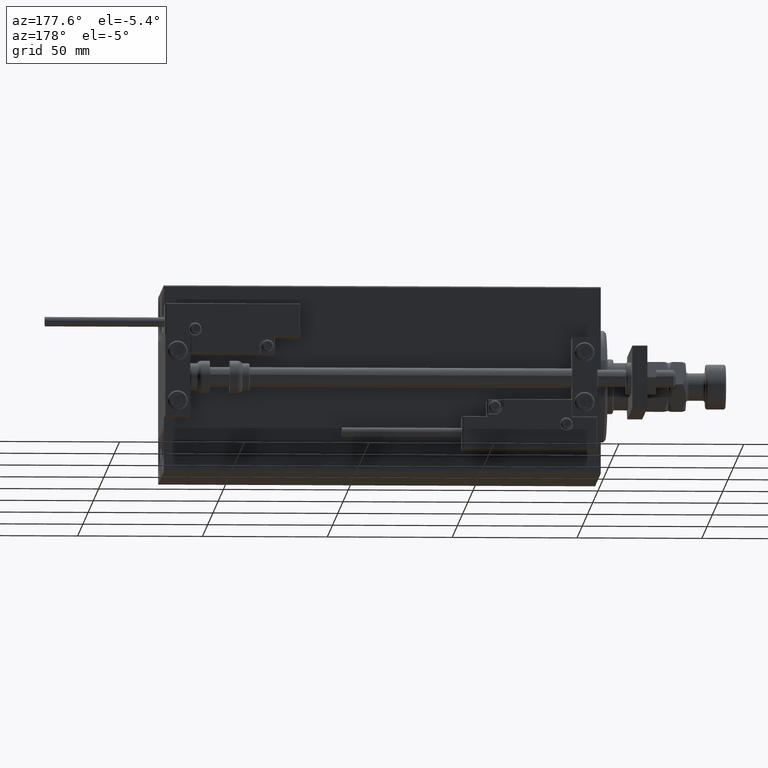
[diagram: clean part render]
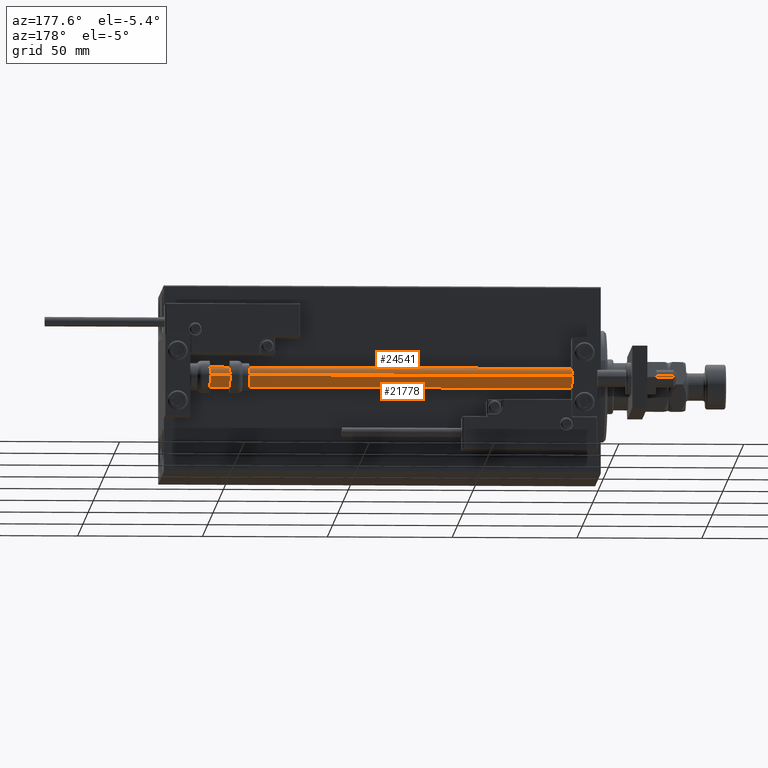
[diagram: same view with one multi-face feature highlighted, each face labeled with its STEP entity id]
A machine part, auxiliary view. The highlighted faces form ONE feature: a constant-radius fillet chain: 2 tangent blend faces with common blend radius 4 mm. The faces share edges in the B-rep.
Their STEP definitions:
[1] entity #24541 (Cylinder):
#3622 = LINE ( 'NONE', #7271, #40185 ) ;
#5370 = VERTEX_POINT ( 'NONE', #14824 ) ;
#5462 = DIRECTION ( 'NONE',  ( -0.000000000000000000, -0.000000000000000000, -1.000000000000000000 ) ) ;
#6904 = CIRCLE ( 'NONE', #29412, 4.000000000000000000 ) ;
#7185 = DIRECTION ( 'NONE',  ( -1.000000000000000000, 0.000000000000000000, 0.000000000000000000 ) ) ;
#7271 = CARTESIAN_POINT ( 'NONE',  ( -4.000000000000000000, 0.000000000000000000, 175.0000000000000000 ) ) ;
#7430 = FACE_OUTER_BOUND ( 'NONE', #13007, .T. ) ;
#8413 = DIRECTION ( 'NONE',  ( 1.000000000000000000, 0.000000000000000000, 0.000000000000000000 ) ) ;
#10900 = VERTEX_POINT ( 'NONE', #32636 ) ;
#11240 = VERTEX_POINT ( 'NONE', #17979 ) ;
#13007 = EDGE_LOOP ( 'NONE', ( #36278, #19507, #47527, #27399 ) ) ;
#14824 = CARTESIAN_POINT ( 'NONE',  ( -4.000000000000000000, 0.000000000000000000, 2.000000000000029310 ) ) ;
#17979 = CARTESIAN_POINT ( 'NONE',  ( 4.000000000000000000, 4.898587196589412829E-16, 175.0000000000000000 ) ) ;
#19507 = ORIENTED_EDGE ( 'NONE', *, *, #47655, .T. ) ;
#20838 = CARTESIAN_POINT ( 'NONE',  ( 4.000000000000000000, 4.898587196589412829E-16, 175.0000000000000000 ) ) ;
#21802 = CARTESIAN_POINT ( 'NONE',  ( -4.000000000000000000, 0.000000000000000000, 175.0000000000000000 ) ) ;
#24541 = ADVANCED_FACE ( 'NONE', ( #7430 ), #35340, .T. ) ;
#27399 = ORIENTED_EDGE ( 'NONE', *, *, #45851, .F. ) ;
#29412 = AXIS2_PLACEMENT_3D ( 'NONE', #43157, #30623, #47319 ) ;
#29718 = EDGE_CURVE ( 'NONE', #11240, #32071, #6904, .T. ) ;
#30623 = DIRECTION ( 'NONE',  ( 0.000000000000000000, 0.000000000000000000, 1.000000000000000000 ) ) ;
#31379 = CARTESIAN_POINT ( 'NONE',  ( 0.000000000000000000, 0.000000000000000000, 2.000000000000029310 ) ) ;
#32036 = DIRECTION ( 'NONE',  ( -0.000000000000000000, -0.000000000000000000, -1.000000000000000000 ) ) ;
#32071 = VERTEX_POINT ( 'NONE', #21802 ) ;
#32636 = CARTESIAN_POINT ( 'NONE',  ( 4.000000000000000000, 4.898587196589412829E-16, 2.000000000000029310 ) ) ;
#33635 = LINE ( 'NONE', #20838, #48567 ) ;
#35340 = CYLINDRICAL_SURFACE ( 'NONE', #50888, 4.000000000000000000 ) ;
#36114 = DIRECTION ( 'NONE',  ( -0.000000000000000000, -0.000000000000000000, -1.000000000000000000 ) ) ;
#36278 = ORIENTED_EDGE ( 'NONE', *, *, #29718, .F. ) ;
#39988 = DIRECTION ( 'NONE',  ( -0.000000000000000000, -0.000000000000000000, 1.000000000000000000 ) ) ;
#40185 = VECTOR ( 'NONE', #32036, 1000.000000000000000 ) ;
#42647 = CIRCLE ( 'NONE', #45997, 4.000000000000000000 ) ;
#43157 = CARTESIAN_POINT ( 'NONE',  ( 0.000000000000000000, 0.000000000000000000, 175.0000000000000000 ) ) ;
#45148 = EDGE_CURVE ( 'NONE', #10900, #5370, #42647, .T. ) ;
#45851 = EDGE_CURVE ( 'NONE', #32071, #5370, #3622, .T. ) ;
#45997 = AXIS2_PLACEMENT_3D ( 'NONE', #31379, #39988, #8413 ) ;
#47319 = DIRECTION ( 'NONE',  ( 1.000000000000000000, 0.000000000000000000, 0.000000000000000000 ) ) ;
#47527 = ORIENTED_EDGE ( 'NONE', *, *, #45148, .T. ) ;
#47655 = EDGE_CURVE ( 'NONE', #11240, #10900, #33635, .T. ) ;
#47875 = CARTESIAN_POINT ( 'NONE',  ( 0.000000000000000000, 0.000000000000000000, 175.0000000000000000 ) ) ;
#48567 = VECTOR ( 'NONE', #5462, 1000.000000000000000 ) ;
#50888 = AXIS2_PLACEMENT_3D ( 'NONE', #47875, #36114, #7185 ) ;
[2] entity #21778 (Cylinder):
#2374 = FACE_OUTER_BOUND ( 'NONE', #35000, .T. ) ;
#3171 = CIRCLE ( 'NONE', #34006, 4.000000000000000000 ) ;
#3622 = LINE ( 'NONE', #7271, #40185 ) ;
#5370 = VERTEX_POINT ( 'NONE', #14824 ) ;
#5462 = DIRECTION ( 'NONE',  ( -0.000000000000000000, -0.000000000000000000, -1.000000000000000000 ) ) ;
#5874 = CIRCLE ( 'NONE', #48375, 4.000000000000000000 ) ;
#6516 = CARTESIAN_POINT ( 'NONE',  ( 0.000000000000000000, 0.000000000000000000, 175.0000000000000000 ) ) ;
#7271 = CARTESIAN_POINT ( 'NONE',  ( -4.000000000000000000, 0.000000000000000000, 175.0000000000000000 ) ) ;
#7866 = CARTESIAN_POINT ( 'NONE',  ( 0.000000000000000000, 0.000000000000000000, 2.000000000000029310 ) ) ;
#8394 = ORIENTED_EDGE ( 'NONE', *, *, #14318, .F. ) ;
#9327 = DIRECTION ( 'NONE',  ( 1.000000000000000000, 0.000000000000000000, 0.000000000000000000 ) ) ;
#10456 = DIRECTION ( 'NONE',  ( -1.000000000000000000, 0.000000000000000000, 0.000000000000000000 ) ) ;
#10900 = VERTEX_POINT ( 'NONE', #32636 ) ;
#11240 = VERTEX_POINT ( 'NONE', #17979 ) ;
#13322 = AXIS2_PLACEMENT_3D ( 'NONE', #6516, #22427, #10456 ) ;
#14318 = EDGE_CURVE ( 'NONE', #32071, #11240, #3171, .T. ) ;
#14824 = CARTESIAN_POINT ( 'NONE',  ( -4.000000000000000000, 0.000000000000000000, 2.000000000000029310 ) ) ;
#16709 = DIRECTION ( 'NONE',  ( 1.000000000000000000, 0.000000000000000000, 0.000000000000000000 ) ) ;
#17396 = DIRECTION ( 'NONE',  ( 0.000000000000000000, 0.000000000000000000, 1.000000000000000000 ) ) ;
#17979 = CARTESIAN_POINT ( 'NONE',  ( 4.000000000000000000, 4.898587196589412829E-16, 175.0000000000000000 ) ) ;
#18270 = CYLINDRICAL_SURFACE ( 'NONE', #13322, 4.000000000000000000 ) ;
#20838 = CARTESIAN_POINT ( 'NONE',  ( 4.000000000000000000, 4.898587196589412829E-16, 175.0000000000000000 ) ) ;
#21778 = ADVANCED_FACE ( 'NONE', ( #2374 ), #18270, .T. ) ;
#21802 = CARTESIAN_POINT ( 'NONE',  ( -4.000000000000000000, 0.000000000000000000, 175.0000000000000000 ) ) ;
#22427 = DIRECTION ( 'NONE',  ( -0.000000000000000000, -0.000000000000000000, -1.000000000000000000 ) ) ;
#24217 = EDGE_CURVE ( 'NONE', #5370, #10900, #5874, .T. ) ;
#25309 = ORIENTED_EDGE ( 'NONE', *, *, #24217, .T. ) ;
#32036 = DIRECTION ( 'NONE',  ( -0.000000000000000000, -0.000000000000000000, -1.000000000000000000 ) ) ;
#32071 = VERTEX_POINT ( 'NONE', #21802 ) ;
#32636 = CARTESIAN_POINT ( 'NONE',  ( 4.000000000000000000, 4.898587196589412829E-16, 2.000000000000029310 ) ) ;
#33635 = LINE ( 'NONE', #20838, #48567 ) ;
#34006 = AXIS2_PLACEMENT_3D ( 'NONE', #46100, #17396, #9327 ) ;
#35000 = EDGE_LOOP ( 'NONE', ( #41718, #8394, #40418, #25309 ) ) ;
#40185 = VECTOR ( 'NONE', #32036, 1000.000000000000000 ) ;
#40418 = ORIENTED_EDGE ( 'NONE', *, *, #45851, .T. ) ;
#41718 = ORIENTED_EDGE ( 'NONE', *, *, #47655, .F. ) ;
#43617 = DIRECTION ( 'NONE',  ( -0.000000000000000000, -0.000000000000000000, 1.000000000000000000 ) ) ;
#45851 = EDGE_CURVE ( 'NONE', #32071, #5370, #3622, .T. ) ;
#46100 = CARTESIAN_POINT ( 'NONE',  ( 0.000000000000000000, 0.000000000000000000, 175.0000000000000000 ) ) ;
#47655 = EDGE_CURVE ( 'NONE', #11240, #10900, #33635, .T. ) ;
#48375 = AXIS2_PLACEMENT_3D ( 'NONE', #7866, #43617, #16709 ) ;
#48567 = VECTOR ( 'NONE', #5462, 1000.000000000000000 ) ;